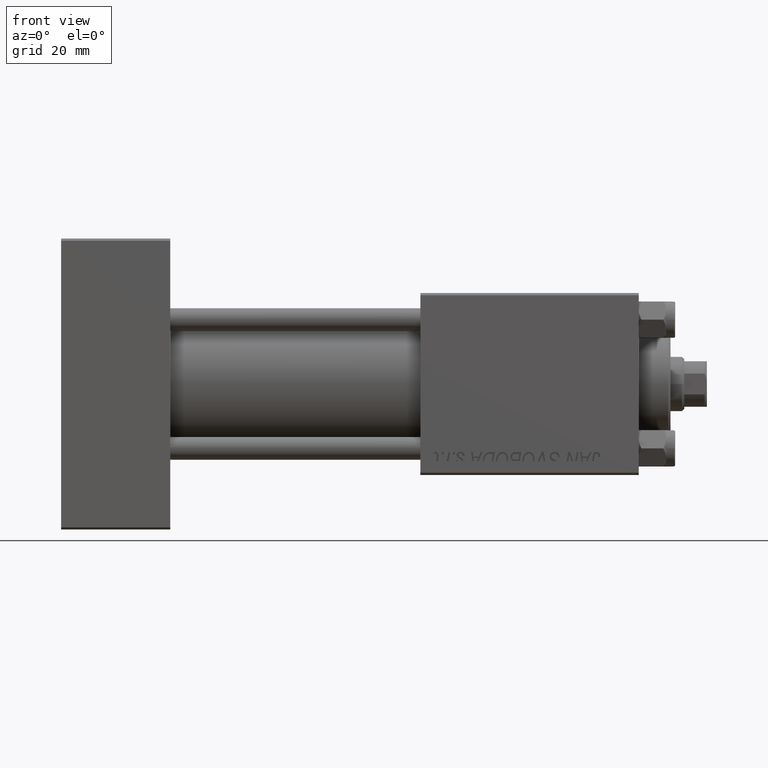
[diagram: clean part render]
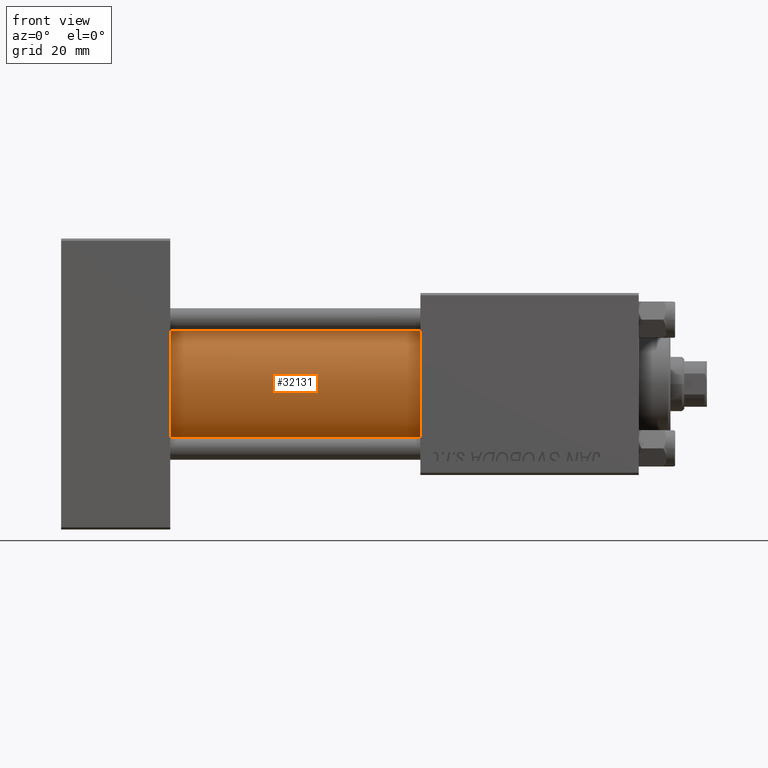
[diagram: same view with one face highlighted and labeled with its STEP entity id]
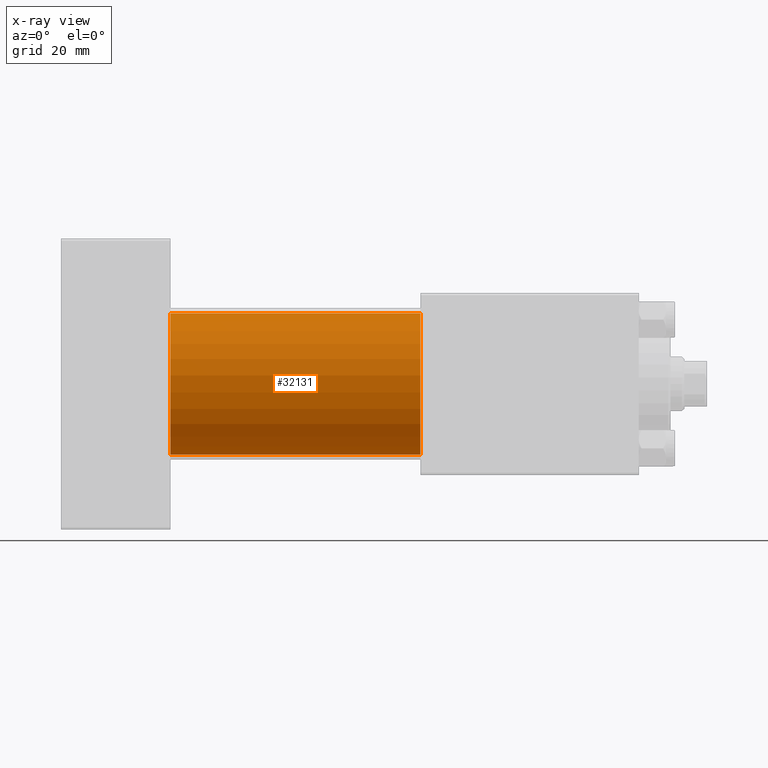
[diagram: x-ray of the same camera — body ghosted, the highlighted face saturated]
A machine part, front view. The second image highlights one B-rep face of the part: STEP entity #32131.
The next image is the same camera in x-ray: the body ghosted, the highlighted face saturated — about 0% of this face is hidden behind the body in this view.
In plain terms, the highlighted cylindrical surface (partial cylindrical patch) has radius 15.5 mm, axis along (-1, -0, -0).
Its self-contained STEP definition (entity closure, byte-faithful):
#194 = VERTEX_POINT ( 'NONE', #12831 ) ;
#2084 = CIRCLE ( 'NONE', #46366, 15.50000000000000000 ) ;
#6715 = VERTEX_POINT ( 'NONE', #45741 ) ;
#8590 = CARTESIAN_POINT ( 'NONE',  ( 24.00000000000000000, -2.602085213965210642E-15, 15.50000000000000000 ) ) ;
#8801 = DIRECTION ( 'NONE',  ( 0.000000000000000000, 0.000000000000000000, 1.000000000000000000 ) ) ;
#8953 = VERTEX_POINT ( 'NONE', #8590 ) ;
#9578 = ORIENTED_EDGE ( 'NONE', *, *, #29084, .T. ) ;
#10167 = VECTOR ( 'NONE', #17096, 1000.000000000000000 ) ;
#12831 = CARTESIAN_POINT ( 'NONE',  ( 24.00000000000000000, -7.038826752868131828E-16, -15.50000000000000000 ) ) ;
#14556 = EDGE_CURVE ( 'NONE', #6715, #194, #31683, .T. ) ;
#16071 = CARTESIAN_POINT ( 'NONE',  ( 79.00000000000000000, -7.038826752868131828E-16, -15.50000000000000000 ) ) ;
#17096 = DIRECTION ( 'NONE',  ( -1.000000000000000000, -0.000000000000000000, -0.000000000000000000 ) ) ;
#18305 = DIRECTION ( 'NONE',  ( 0.000000000000000000, 0.000000000000000000, -1.000000000000000000 ) ) ;
#18555 = CIRCLE ( 'NONE', #24974, 15.50000000000000000 ) ;
#19600 = DIRECTION ( 'NONE',  ( -1.000000000000000000, -0.000000000000000000, -0.000000000000000000 ) ) ;
#19733 = ORIENTED_EDGE ( 'NONE', *, *, #27067, .T. ) ;
#20248 = ORIENTED_EDGE ( 'NONE', *, *, #14556, .F. ) ;
#20513 = CARTESIAN_POINT ( 'NONE',  ( 79.00000000000000000, -2.602085213965210642E-15, 15.50000000000000000 ) ) ;
#23193 = FACE_OUTER_BOUND ( 'NONE', #47978, .T. ) ;
#23207 = CARTESIAN_POINT ( 'NONE',  ( 79.00000000000000000, -2.602085213965210642E-15, 15.50000000000000000 ) ) ;
#24702 = CARTESIAN_POINT ( 'NONE',  ( 24.00000000000000000, -2.602085213965210642E-15, 0.000000000000000000 ) ) ;
#24974 = AXIS2_PLACEMENT_3D ( 'NONE', #34167, #49328, #18305 ) ;
#27067 = EDGE_CURVE ( 'NONE', #8953, #194, #2084, .T. ) ;
#28528 = ORIENTED_EDGE ( 'NONE', *, *, #45979, .F. ) ;
#28995 = DIRECTION ( 'NONE',  ( 1.000000000000000000, 0.000000000000000000, 0.000000000000000000 ) ) ;
#29084 = EDGE_CURVE ( 'NONE', #38587, #8953, #42366, .T. ) ;
#31683 = LINE ( 'NONE', #16071, #46103 ) ;
#32131 = ADVANCED_FACE ( 'NONE', ( #23193 ), #42122, .T. ) ;
#33634 = AXIS2_PLACEMENT_3D ( 'NONE', #38576, #34792, #8801 ) ;
#34167 = CARTESIAN_POINT ( 'NONE',  ( 79.00000000000000000, -2.602085213965210642E-15, 0.000000000000000000 ) ) ;
#34792 = DIRECTION ( 'NONE',  ( -1.000000000000000000, -0.000000000000000000, -0.000000000000000000 ) ) ;
#38576 = CARTESIAN_POINT ( 'NONE',  ( 79.00000000000000000, -2.602085213965210642E-15, 0.000000000000000000 ) ) ;
#38587 = VERTEX_POINT ( 'NONE', #20513 ) ;
#40089 = DIRECTION ( 'NONE',  ( 0.000000000000000000, 0.000000000000000000, 1.000000000000000000 ) ) ;
#42122 = CYLINDRICAL_SURFACE ( 'NONE', #33634, 15.50000000000000000 ) ;
#42366 = LINE ( 'NONE', #23207, #10167 ) ;
#45741 = CARTESIAN_POINT ( 'NONE',  ( 79.00000000000000000, -7.038826752868131828E-16, -15.50000000000000000 ) ) ;
#45979 = EDGE_CURVE ( 'NONE', #38587, #6715, #18555, .T. ) ;
#46103 = VECTOR ( 'NONE', #19600, 1000.000000000000000 ) ;
#46366 = AXIS2_PLACEMENT_3D ( 'NONE', #24702, #28995, #40089 ) ;
#47978 = EDGE_LOOP ( 'NONE', ( #20248, #28528, #9578, #19733 ) ) ;
#49328 = DIRECTION ( 'NONE',  ( 1.000000000000000000, 0.000000000000000000, 0.000000000000000000 ) ) ;